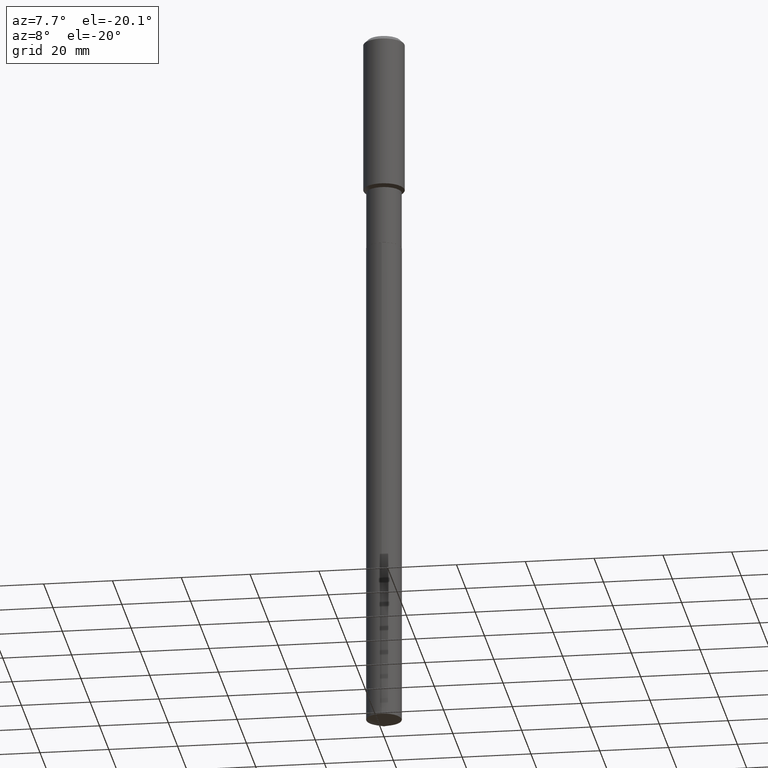
[diagram: clean part render]
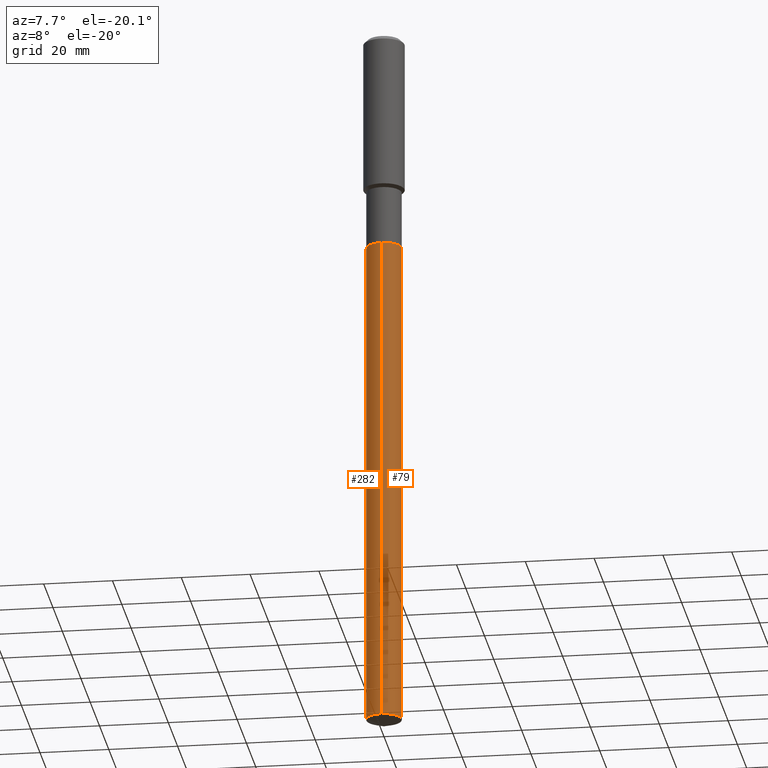
[diagram: same view with one multi-face feature highlighted, each face labeled with its STEP entity id]
A machine part, auxiliary view. The highlighted faces form ONE feature: a constant-radius fillet chain: 2 tangent blend faces with common blend radius 5.1498 mm. The faces share edges in the B-rep.
Their STEP definitions:
[1] entity #79 (Cylinder):
#8 = VERTEX_POINT ( 'NONE', #293 ) ;
#32 = DIRECTION ( 'NONE',  ( -2.445481399792340349E-29, 3.491463304080846425E-15, 1.000000000000000000 ) ) ;
#43 = CARTESIAN_POINT ( 'NONE',  ( -1.415795682900829336E-15, -0.2027500000000087288, -2.498299999999999521 ) ) ;
#45 = CIRCLE ( 'NONE', #435, 0.2027500000000000135 ) ;
#51 = DIRECTION ( 'NONE',  ( -2.445481399792340349E-29, 3.491463304080846425E-15, 1.000000000000000000 ) ) ;
#68 = AXIS2_PLACEMENT_3D ( 'NONE', #255, #51, #169 ) ;
#69 = CARTESIAN_POINT ( 'NONE',  ( 1.440625396753804185E-15, 0.2027499999999912983, -2.498300000000000409 ) ) ;
#79 = ADVANCED_FACE ( 'NONE', ( #250 ), #133, .T. ) ;
#80 = ORIENTED_EDGE ( 'NONE', *, *, #115, .T. ) ;
#81 = LINE ( 'NONE', #43, #359 ) ;
#115 = EDGE_CURVE ( 'NONE', #197, #389, #45, .T. ) ;
#118 = DIRECTION ( 'NONE',  ( -2.445481399792340349E-29, 3.491463304080846425E-15, 1.000000000000000000 ) ) ;
#120 = CARTESIAN_POINT ( 'NONE',  ( 1.440625396753803199E-15, 0.2027499999999714253, -8.188134651069074010 ) ) ;
#133 = CYLINDRICAL_SURFACE ( 'NONE', #68, 0.2027500000000000135 ) ;
#147 = VERTEX_POINT ( 'NONE', #69 ) ;
#169 = DIRECTION ( 'NONE',  ( -6.982962677686265922E-15, -1.000000000000000000, 2.694794568349458162E-15 ) ) ;
#178 = EDGE_CURVE ( 'NONE', #389, #147, #299, .T. ) ;
#183 = CIRCLE ( 'NONE', #366, 0.2027500000000000135 ) ;
#186 = ORIENTED_EDGE ( 'NONE', *, *, #215, .F. ) ;
#197 = VERTEX_POINT ( 'NONE', #339 ) ;
#215 = EDGE_CURVE ( 'NONE', #8, #147, #183, .T. ) ;
#223 = DIRECTION ( 'NONE',  ( -2.445481399792340629E-29, 3.491463304080846425E-15, 1.000000000000000000 ) ) ;
#234 = ORIENTED_EDGE ( 'NONE', *, *, #178, .T. ) ;
#235 = CARTESIAN_POINT ( 'NONE',  ( 6.109514718492326640E-29, -8.722767828831831042E-15, -2.498299999999999965 ) ) ;
#239 = DIRECTION ( 'NONE',  ( -2.445481399792340629E-29, 3.491463304080846425E-15, 1.000000000000000000 ) ) ;
#250 = FACE_OUTER_BOUND ( 'NONE', #374, .T. ) ;
#255 = CARTESIAN_POINT ( 'NONE',  ( 6.109514718492326640E-29, -8.722767828831831042E-15, -2.498299999999999965 ) ) ;
#264 = CARTESIAN_POINT ( 'NONE',  ( 2.002389952557568366E-28, -2.858861671932714355E-14, -8.188134651069072234 ) ) ;
#293 = CARTESIAN_POINT ( 'NONE',  ( -1.415795682900829336E-15, -0.2027500000000087288, -2.498299999999999521 ) ) ;
#299 = LINE ( 'NONE', #371, #335 ) ;
#335 = VECTOR ( 'NONE', #223, 39.37007874015748143 ) ;
#339 = CARTESIAN_POINT ( 'NONE',  ( -1.415795682900690300E-15, -0.2027500000000285463, -8.188134651069070458 ) ) ;
#359 = VECTOR ( 'NONE', #239, 39.37007874015748143 ) ;
#366 = AXIS2_PLACEMENT_3D ( 'NONE', #235, #32, #485 ) ;
#371 = CARTESIAN_POINT ( 'NONE',  ( 1.440625396753664163E-15, 0.2027499999999912983, -2.498300000000000409 ) ) ;
#373 = DIRECTION ( 'NONE',  ( -6.982962677686265922E-15, -1.000000000000000000, 5.389589136698916324E-15 ) ) ;
#374 = EDGE_LOOP ( 'NONE', ( #80, #234, #186, #425 ) ) ;
#389 = VERTEX_POINT ( 'NONE', #120 ) ;
#417 = EDGE_CURVE ( 'NONE', #197, #8, #81, .T. ) ;
#425 = ORIENTED_EDGE ( 'NONE', *, *, #417, .F. ) ;
#435 = AXIS2_PLACEMENT_3D ( 'NONE', #264, #118, #373 ) ;
#485 = DIRECTION ( 'NONE',  ( -6.982962677686265922E-15, -1.000000000000000000, 2.694794568349458162E-15 ) ) ;
[2] entity #282 (Cylinder):
#3 = FACE_OUTER_BOUND ( 'NONE', #84, .T. ) ;
#6 = AXIS2_PLACEMENT_3D ( 'NONE', #251, #396, #361 ) ;
#8 = VERTEX_POINT ( 'NONE', #293 ) ;
#19 = ORIENTED_EDGE ( 'NONE', *, *, #417, .T. ) ;
#43 = CARTESIAN_POINT ( 'NONE',  ( -1.415795682900829336E-15, -0.2027500000000087288, -2.498299999999999521 ) ) ;
#69 = CARTESIAN_POINT ( 'NONE',  ( 1.440625396753804185E-15, 0.2027499999999912983, -2.498300000000000409 ) ) ;
#81 = LINE ( 'NONE', #43, #359 ) ;
#84 = EDGE_LOOP ( 'NONE', ( #206, #420, #19, #408 ) ) ;
#110 = EDGE_CURVE ( 'NONE', #389, #197, #113, .T. ) ;
#113 = CIRCLE ( 'NONE', #202, 0.2027500000000000135 ) ;
#120 = CARTESIAN_POINT ( 'NONE',  ( 1.440625396753803199E-15, 0.2027499999999714253, -8.188134651069074010 ) ) ;
#123 = CARTESIAN_POINT ( 'NONE',  ( 6.109514718492326640E-29, -8.722767828831831042E-15, -2.498299999999999965 ) ) ;
#146 = DIRECTION ( 'NONE',  ( -2.445481399792340349E-29, 3.491463304080846425E-15, 1.000000000000000000 ) ) ;
#147 = VERTEX_POINT ( 'NONE', #69 ) ;
#178 = EDGE_CURVE ( 'NONE', #389, #147, #299, .T. ) ;
#197 = VERTEX_POINT ( 'NONE', #339 ) ;
#202 = AXIS2_PLACEMENT_3D ( 'NONE', #344, #146, #442 ) ;
#206 = ORIENTED_EDGE ( 'NONE', *, *, #178, .F. ) ;
#223 = DIRECTION ( 'NONE',  ( -2.445481399792340629E-29, 3.491463304080846425E-15, 1.000000000000000000 ) ) ;
#239 = DIRECTION ( 'NONE',  ( -2.445481399792340629E-29, 3.491463304080846425E-15, 1.000000000000000000 ) ) ;
#251 = CARTESIAN_POINT ( 'NONE',  ( 6.109514718492326640E-29, -8.722767828831831042E-15, -2.498299999999999965 ) ) ;
#274 = DIRECTION ( 'NONE',  ( -2.445481399792340349E-29, 3.491463304080846425E-15, 1.000000000000000000 ) ) ;
#282 = ADVANCED_FACE ( 'NONE', ( #3 ), #454, .T. ) ;
#293 = CARTESIAN_POINT ( 'NONE',  ( -1.415795682900829336E-15, -0.2027500000000087288, -2.498299999999999521 ) ) ;
#299 = LINE ( 'NONE', #371, #335 ) ;
#335 = VECTOR ( 'NONE', #223, 39.37007874015748143 ) ;
#339 = CARTESIAN_POINT ( 'NONE',  ( -1.415795682900690300E-15, -0.2027500000000285463, -8.188134651069070458 ) ) ;
#344 = CARTESIAN_POINT ( 'NONE',  ( 2.002389952557568366E-28, -2.858861671932714355E-14, -8.188134651069072234 ) ) ;
#359 = VECTOR ( 'NONE', #239, 39.37007874015748143 ) ;
#361 = DIRECTION ( 'NONE',  ( -6.982962677686265922E-15, -1.000000000000000000, 2.694794568349458162E-15 ) ) ;
#371 = CARTESIAN_POINT ( 'NONE',  ( 1.440625396753664163E-15, 0.2027499999999912983, -2.498300000000000409 ) ) ;
#389 = VERTEX_POINT ( 'NONE', #120 ) ;
#396 = DIRECTION ( 'NONE',  ( -2.445481399792340349E-29, 3.491463304080846425E-15, 1.000000000000000000 ) ) ;
#408 = ORIENTED_EDGE ( 'NONE', *, *, #465, .F. ) ;
#417 = EDGE_CURVE ( 'NONE', #197, #8, #81, .T. ) ;
#420 = ORIENTED_EDGE ( 'NONE', *, *, #110, .T. ) ;
#442 = DIRECTION ( 'NONE',  ( -6.982962677686265922E-15, -1.000000000000000000, 5.389589136698916324E-15 ) ) ;
#454 = CYLINDRICAL_SURFACE ( 'NONE', #489, 0.2027500000000000135 ) ;
#455 = CIRCLE ( 'NONE', #6, 0.2027500000000000135 ) ;
#458 = DIRECTION ( 'NONE',  ( -6.982962677686265922E-15, -1.000000000000000000, 2.694794568349458162E-15 ) ) ;
#465 = EDGE_CURVE ( 'NONE', #147, #8, #455, .T. ) ;
#489 = AXIS2_PLACEMENT_3D ( 'NONE', #123, #274, #458 ) ;